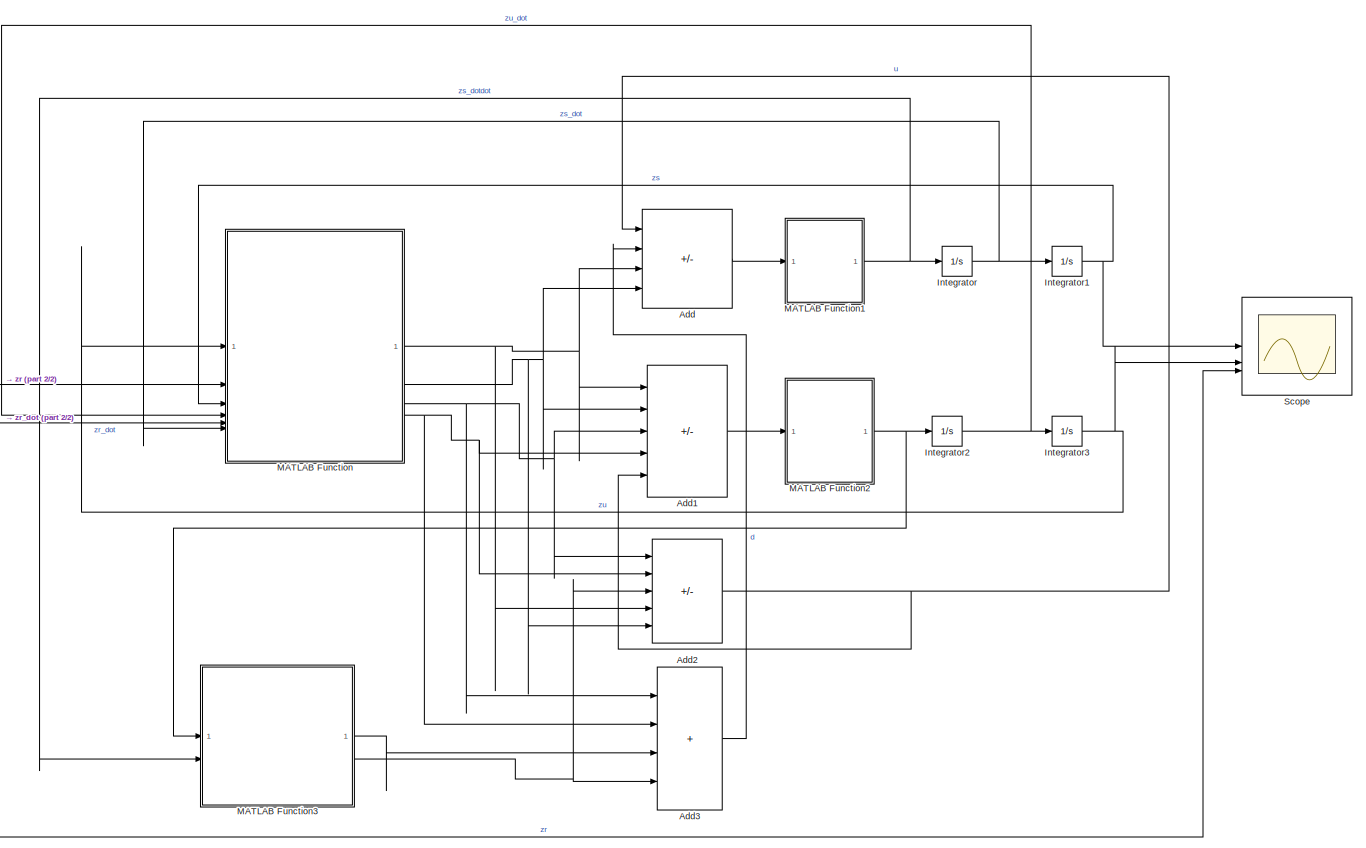
[diagram: root canvas - part 1/2, most of the canvas]
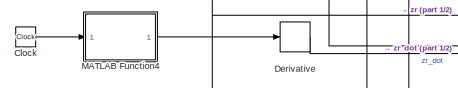
[diagram: root canvas - part 2/2, middle left region]
MODEL slx_9eebf9a84c43
KIND model
CONFIG AbsTol = auto
CONFIG EnableMultiTasking = off
CONFIG FixedStep = auto
CONFIG MaxStep = auto
CONFIG MinStep = auto
CONFIG RelTol = 1e-3
CONFIG SampleTimeConstraint = Unconstrained
CONFIG SolverName = VariableStepAuto
CONFIG StartTime = 0.0
CONFIG StopTime = 10.0
BLOCK [Sum] Add
  IconShape = rectangular
  Inputs = ++--
BLOCK [Sum] Add1
  IconShape = rectangular
  Inputs = ++---
BLOCK [Sum] Add2
  IconShape = rectangular
  Inputs = ---++
BLOCK [Sum] Add3
  IconShape = rectangular
  Inputs = ++++
BLOCK [Clock] Clock
BLOCK [Derivative] Derivative
BLOCK [Integrator] Integrator
BLOCK [Integrator] Integrator1
  InitialCondition = 0.03
BLOCK [Integrator] Integrator2
BLOCK [Integrator] Integrator3
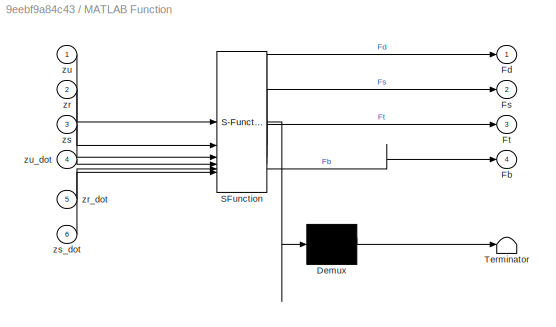
BLOCK [SubSystem] MATLAB Function
  ErrorFcn = Stateflow.Translate.translate
  LibrarySourceBlock = simulink/User-Defined\nFunctions/MATLAB Function
  PermitHierarchicalResolution = ExplicitOnly
  SFBlockType = MATLAB Function
  TreatAsAtomicUnit = on
BLOCK [Demux] MATLAB Function/ Demux 
  Outputs = 1
BLOCK [S-Function] MATLAB Function/ SFunction 
  EnableBusSupport = on
  FunctionName = sf_sfun
  PortCounts = [6 5]
  SFcnIsStateOwnerBlock = off
  SFunctionDeploymentMode = off
  Tag = Stateflow S-Function 2
BLOCK [Terminator] MATLAB Function/ Terminator 
BLOCK [Outport] MATLAB Function/Fb
  Port = 4
BLOCK [Outport] MATLAB Function/Fd
BLOCK [Outport] MATLAB Function/Fs
  Port = 2
BLOCK [Outport] MATLAB Function/Ft
  Port = 3
BLOCK [Inport] MATLAB Function/zr
  Port = 2
BLOCK [Inport] MATLAB Function/zr_dot
  Port = 5
BLOCK [Inport] MATLAB Function/zs
  Port = 3
BLOCK [Inport] MATLAB Function/zs_dot
  Port = 6
BLOCK [Inport] MATLAB Function/zu
BLOCK [Inport] MATLAB Function/zu_dot
  Port = 4
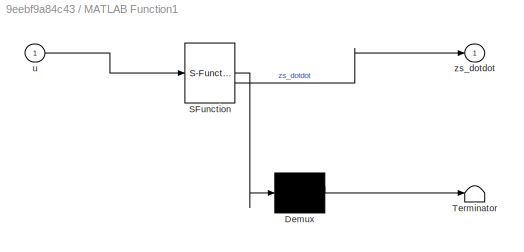
BLOCK [SubSystem] MATLAB Function1
  ErrorFcn = Stateflow.Translate.translate
  LibrarySourceBlock = simulink/User-Defined\nFunctions/MATLAB Function
  PermitHierarchicalResolution = ExplicitOnly
  SFBlockType = MATLAB Function
  TreatAsAtomicUnit = on
BLOCK [Demux] MATLAB Function1/ Demux 
  Outputs = 1
BLOCK [S-Function] MATLAB Function1/ SFunction 
  EnableBusSupport = on
  FunctionName = sf_sfun
  PortCounts = [1 2]
  SFcnIsStateOwnerBlock = off
  SFunctionDeploymentMode = off
  Tag = Stateflow S-Function 1
BLOCK [Terminator] MATLAB Function1/ Terminator 
BLOCK [Inport] MATLAB Function1/u
BLOCK [Outport] MATLAB Function1/zs_dotdot
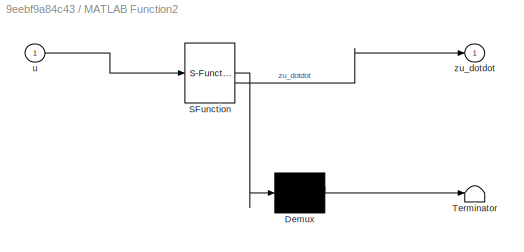
BLOCK [SubSystem] MATLAB Function2
  ErrorFcn = Stateflow.Translate.translate
  LibrarySourceBlock = simulink/User-Defined\nFunctions/MATLAB Function
  PermitHierarchicalResolution = ExplicitOnly
  SFBlockType = MATLAB Function
  TreatAsAtomicUnit = on
BLOCK [Demux] MATLAB Function2/ Demux 
  Outputs = 1
BLOCK [S-Function] MATLAB Function2/ SFunction 
  EnableBusSupport = on
  FunctionName = sf_sfun
  PortCounts = [1 2]
  SFcnIsStateOwnerBlock = off
  SFunctionDeploymentMode = off
  Tag = Stateflow S-Function 3
BLOCK [Terminator] MATLAB Function2/ Terminator 
BLOCK [Inport] MATLAB Function2/u
BLOCK [Outport] MATLAB Function2/zu_dotdot
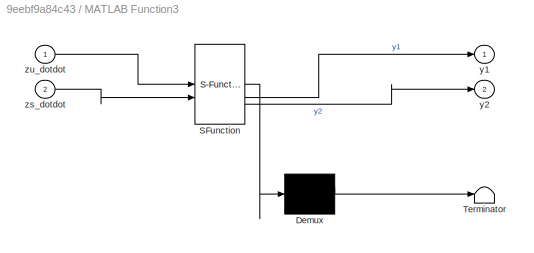
BLOCK [SubSystem] MATLAB Function3
  ErrorFcn = Stateflow.Translate.translate
  LibrarySourceBlock = simulink/User-Defined\nFunctions/MATLAB Function
  PermitHierarchicalResolution = ExplicitOnly
  SFBlockType = MATLAB Function
  TreatAsAtomicUnit = on
BLOCK [Demux] MATLAB Function3/ Demux 
  Outputs = 1
BLOCK [S-Function] MATLAB Function3/ SFunction 
  EnableBusSupport = on
  FunctionName = sf_sfun
  PortCounts = [2 3]
  SFcnIsStateOwnerBlock = off
  SFunctionDeploymentMode = off
  Tag = Stateflow S-Function 4
BLOCK [Terminator] MATLAB Function3/ Terminator 
BLOCK [Outport] MATLAB Function3/y1
BLOCK [Outport] MATLAB Function3/y2
  Port = 2
BLOCK [Inport] MATLAB Function3/zs_dotdot
  Port = 2
BLOCK [Inport] MATLAB Function3/zu_dotdot
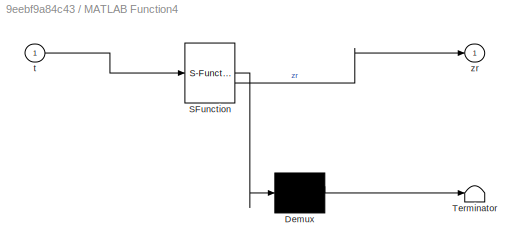
BLOCK [SubSystem] MATLAB Function4
  ErrorFcn = Stateflow.Translate.translate
  LibrarySourceBlock = simulink/User-Defined\nFunctions/MATLAB Function
  PermitHierarchicalResolution = ExplicitOnly
  SFBlockType = MATLAB Function
  TreatAsAtomicUnit = on
BLOCK [Demux] MATLAB Function4/ Demux 
  Outputs = 1
BLOCK [S-Function] MATLAB Function4/ SFunction 
  EnableBusSupport = on
  FunctionName = sf_sfun
  PortCounts = [1 2]
  SFcnIsStateOwnerBlock = off
  SFunctionDeploymentMode = off
  Tag = Stateflow S-Function 5
BLOCK [Terminator] MATLAB Function4/ Terminator 
BLOCK [Inport] MATLAB Function4/t
BLOCK [Outport] MATLAB Function4/zr
BLOCK [Scope] Scope
  Floating = off
  NumInputPorts = 3
  ScopeSpecificationString = Simulink.scopes.TimeScopeBlockCfg('CurrentConfiguration', extmgr.ConfigurationSet(extmgr.Configuration('Core','General UI',true),extmgr.Configuration('Core','Source UI',true),extmgr.Configuration('Sources','WiredSimulink',true),extmgr.Configuration('Visuals','Time Domain',true,'SerializedDisplays',{struct('MinYLimReal','-0.03923','MaxYLimReal','0.09031','YLabelReal','','MinYLimMag','0.00000','MaxY...<+2625ch>
LINE Add1:1 -> MATLAB Function2:1
NET Add2:1 -> Add1:5, Add:1
LINE Add3:1 -> Add:2
LINE Add:1 -> MATLAB Function1:1
LINE Clock:1 -> MATLAB Function4:1
LINE Derivative:1 -> MATLAB Function:5
NET Integrator1:1 -> MATLAB Function:3, Scope:1
NET Integrator2:1 -> Integrator3:1, MATLAB Function:4
NET Integrator3:1 -> MATLAB Function:1, Scope:2
NET Integrator:1 -> Integrator1:1, MATLAB Function:6
NET MATLAB Function1:1 -> Integrator:1, MATLAB Function3:2
NET MATLAB Function2:1 -> Integrator2:1, MATLAB Function3:1
LINE MATLAB Function3:1 -> Add3:3
NET MATLAB Function3:2 -> Add2:3, Add3:4
NET MATLAB Function4:1 -> Derivative:1, MATLAB Function:2, Scope:3
NET MATLAB Function:1 -> Add1:1, Add2:4, Add:3
NET MATLAB Function:2 -> Add1:2, Add2:5, Add:4
NET MATLAB Function:3 -> Add1:3, Add2:1, Add3:1
NET MATLAB Function:4 -> Add1:4, Add2:2, Add3:2
note: NET lines group one-source signal fan-out (src -> all destinations, sorted); 1:1 wires keep LINE
CHART MATLAB Function1 states=1 transitions=1
  STATE_LABEL 'eML_blk_kernel()'
  STATE_LABEL 'SCRIPT:\nfunction zs_dotdot = fcn(u)\nms=600; %kg\nzs_dotdot=u*(1/ms);\nend\n'
CHART MATLAB Function states=1 transitions=1
  STATE_LABEL 'eML_blk_kernel()'
  STATE_LABEL 'SCRIPT:\nfunction [Fd,Fs,Ft,Fb]=fcn(zu,zr,zs,zu_dot,zr_dot,zs_dot)\nks=18000; %N/m\nksn=1000; %N/m\nbc=2500; %Ns/m\nkf=200000; %N/m\ncf=1000; %Ns/m\n\ndelta_z = zs-zu; \n\ndelta_zdot =  zs_dot-zu_dot;\n\nFs = ks*delta_z+ksn*delta_z^3;\n\nFd = bc*delta_zdot;\n\nFt = kf*(zu-zr);\n\nFb = cf*(zu_dot-zr_dot);\n\nend\n'
CHART MATLAB Function2 states=1 transitions=1
  STATE_LABEL 'eML_blk_kernel()'
  STATE_LABEL 'SCRIPT:\nfunction zu_dotdot = fcn(u)\nmu=60; %kg\nzu_dotdot=u*(1/mu);\nend\n\n'
CHART MATLAB Function3 states=1 transitions=1
  STATE_LABEL 'eML_blk_kernel()'
  STATE_LABEL 'SCRIPT:\nfunction [y1,y2] = fcn(zu_dotdot,zs_dotdot)\nms=600; %kg\nmu=60; %kg\ny1=ms*zs_dotdot;\ny2=mu*zu_dotdot;\nend\n'
CHART MATLAB Function4 states=1 transitions=1
  STATE_LABEL 'eML_blk_kernel()'
  STATE_LABEL 'SCRIPT:\nfunction zr = func_1(t)\n   if t< 3.0\n       zr = 0.0;\n   elseif t< 3.5\n       zr = 0.04*(1-cos(4*pi*t));\n   else\n       zr = 0;\n   end\nend\n'
CHART  states=0 transitions=0
CHART  states=0 transitions=0
CHART  states=0 transitions=0
CHART  states=0 transitions=0
CHART  states=0 transitions=0
